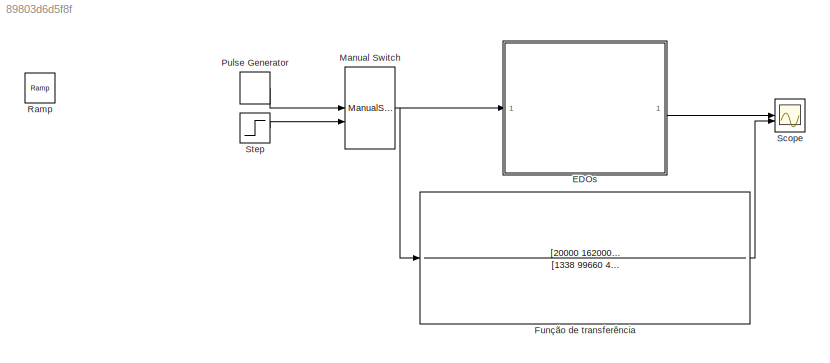
MODEL slx_89803d6d5f8f
KIND model
CONFIG AbsTol = auto
CONFIG EnableMultiTasking = off
CONFIG FixedStep = auto
CONFIG MaxStep = auto
CONFIG MinStep = auto
CONFIG RelTol = 1e-3
CONFIG SampleTimeConstraint = Unconstrained
CONFIG SolverName = VariableStepAuto
CONFIG StartTime = 0.0
CONFIG StopTime = 10.0
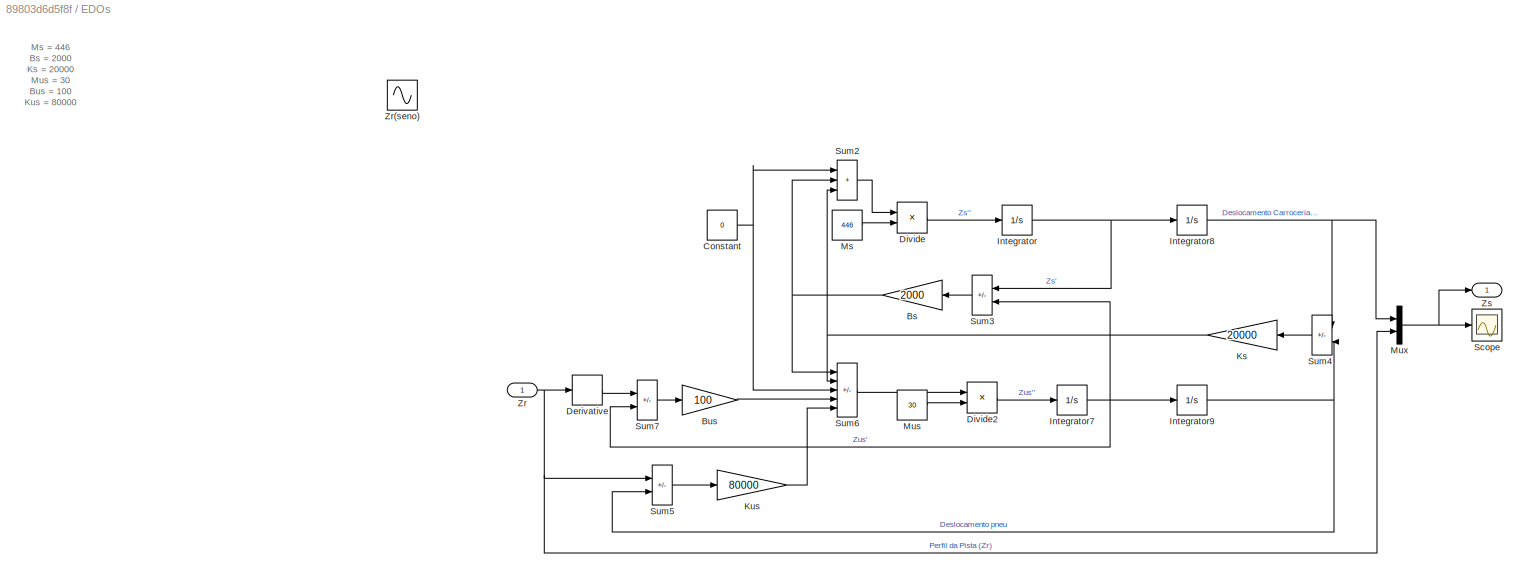
BLOCK [SubSystem] EDOs
BLOCK [Gain] EDOs/Bs
  Gain = 2000
BLOCK [Gain] EDOs/Bus
  Gain = 100
  NameLocation = top
BLOCK [Constant] EDOs/Constant
  Value = 0
BLOCK [Derivative] EDOs/Derivative
BLOCK [Product] EDOs/Divide
  Inputs = */
BLOCK [Product] EDOs/Divide2
  Inputs = */
BLOCK [Integrator] EDOs/Integrator
BLOCK [Integrator] EDOs/Integrator7
BLOCK [Integrator] EDOs/Integrator8
BLOCK [Integrator] EDOs/Integrator9
BLOCK [Gain] EDOs/Ks
  Gain = 20000
BLOCK [Gain] EDOs/Kus
  Gain = 80000
  NameLocation = top
BLOCK [Constant] EDOs/Ms
  Value = 446
BLOCK [Constant] EDOs/Mus
  Value = 30
BLOCK [Mux] EDOs/Mux
  DisplayOption = bar
  Inputs = 2
BLOCK [Scope] EDOs/Scope
  Floating = off
  NumInputPorts = 1
  ScopeSpecificationString = Simulink.scopes.TimeScopeBlockCfg('CurrentConfiguration', extmgr.ConfigurationSet(extmgr.Configuration('Core','General UI',true),extmgr.Configuration('Core','Source UI',true),extmgr.Configuration('Sources','WiredSimulink',true,'DataLoggingVariableName','ScopeData1'),extmgr.Configuration('Visuals','Time Domain',true,'SerializedDisplays',{struct('MinYLimReal','-0.6449','MaxYLimReal','1.20365','YLabe...<+1844ch>
BLOCK [Sum] EDOs/Sum2
  IconShape = rectangular
  Inputs = +++
BLOCK [Sum] EDOs/Sum3
  IconShape = rectangular
  Inputs = -+
  NameLocation = top
BLOCK [Sum] EDOs/Sum4
  IconShape = rectangular
  Inputs = -+
  NameLocation = top
BLOCK [Sum] EDOs/Sum5
  IconShape = rectangular
  Inputs = +-
BLOCK [Sum] EDOs/Sum6
  IconShape = rectangular
  Inputs = ---++
BLOCK [Sum] EDOs/Sum7
  IconShape = rectangular
  Inputs = +-
BLOCK [Inport] EDOs/Zr
BLOCK [Sin] EDOs/Zr(seno)
  Amplitude = 0.5
  SampleTime = 0
BLOCK [Outport] EDOs/Zs
  NameLocation = top
BLOCK [TransferFcn] Função de transferência
  Denominator = [1338 99660 4540000 16200000 160000000]
  Numerator = [20000 16200000 160000000]
BLOCK [ManualSwitch] Manual Switch
BLOCK [DiscretePulseGenerator] Pulse Generator
  Period = 4
  PhaseDelay = 1
  PulseType = Time based
  PulseWidth = 5
BLOCK [Reference] Ramp  REF=simulink/Sources/Ramp
  SourceBlock = simulink/Sources/Ramp
  SourceType = Ramp
BLOCK [Scope] Scope
  Floating = off
  NumInputPorts = 2
  ScopeSpecificationString = Simulink.scopes.TimeScopeBlockCfg('CurrentConfiguration', extmgr.ConfigurationSet(extmgr.Configuration('Core','General UI',true),extmgr.Configuration('Core','Source UI',true),extmgr.Configuration('Sources','WiredSimulink',true,'DataLoggingVariableName','ScopeData1'),extmgr.Configuration('Visuals','Time Domain',true,'SerializedDisplays',{struct('MinYLimReal','-0.64455','MaxYLimReal','1.2032','YLabe...<+2247ch>
BLOCK [Step] Step
  SampleTime = 0
ANNOTATION EDOs: Ms = 446 Bs = 2000 Ks = 20000 Mus = 30 Bus = 100 Kus = 80000
NET EDOs/Bs:1 -> EDOs/Sum2:2, EDOs/Sum6:1
LINE EDOs/Bus:1 -> EDOs/Sum6:4
NET EDOs/Constant:1 -> EDOs/Sum2:1, EDOs/Sum6:3
LINE EDOs/Derivative:1 -> EDOs/Sum7:1
LINE EDOs/Divide2:1 -> EDOs/Integrator7:1
LINE EDOs/Divide:1 -> EDOs/Integrator:1
NET EDOs/Integrator7:1 -> EDOs/Integrator9:1, EDOs/Sum3:2, EDOs/Sum7:2
NET EDOs/Integrator8:1 -> EDOs/Mux:1, EDOs/Sum4:1
NET EDOs/Integrator9:1 -> EDOs/Sum4:2, EDOs/Sum5:2
NET EDOs/Integrator:1 -> EDOs/Integrator8:1, EDOs/Sum3:1
NET EDOs/Ks:1 -> EDOs/Sum2:3, EDOs/Sum6:2
LINE EDOs/Kus:1 -> EDOs/Sum6:5
LINE EDOs/Ms:1 -> EDOs/Divide:2
LINE EDOs/Mus:1 -> EDOs/Divide2:2
NET EDOs/Mux:1 -> EDOs/Scope:1, EDOs/Zs:1
LINE EDOs/Sum2:1 -> EDOs/Divide:1
LINE EDOs/Sum3:1 -> EDOs/Bs:1
LINE EDOs/Sum4:1 -> EDOs/Ks:1
LINE EDOs/Sum5:1 -> EDOs/Kus:1
LINE EDOs/Sum6:1 -> EDOs/Divide2:1
LINE EDOs/Sum7:1 -> EDOs/Bus:1
NET EDOs/Zr:1 -> EDOs/Derivative:1, EDOs/Mux:2, EDOs/Sum5:1
LINE EDOs:1 -> Scope:1
LINE Função de transferência:1 -> Scope:2
NET Manual Switch:1 -> EDOs:1, Função de transferência:1
LINE Pulse Generator:1 -> Manual Switch:1
LINE Step:1 -> Manual Switch:2
note: NET lines group one-source signal fan-out (src -> all destinations, sorted); 1:1 wires keep LINE
